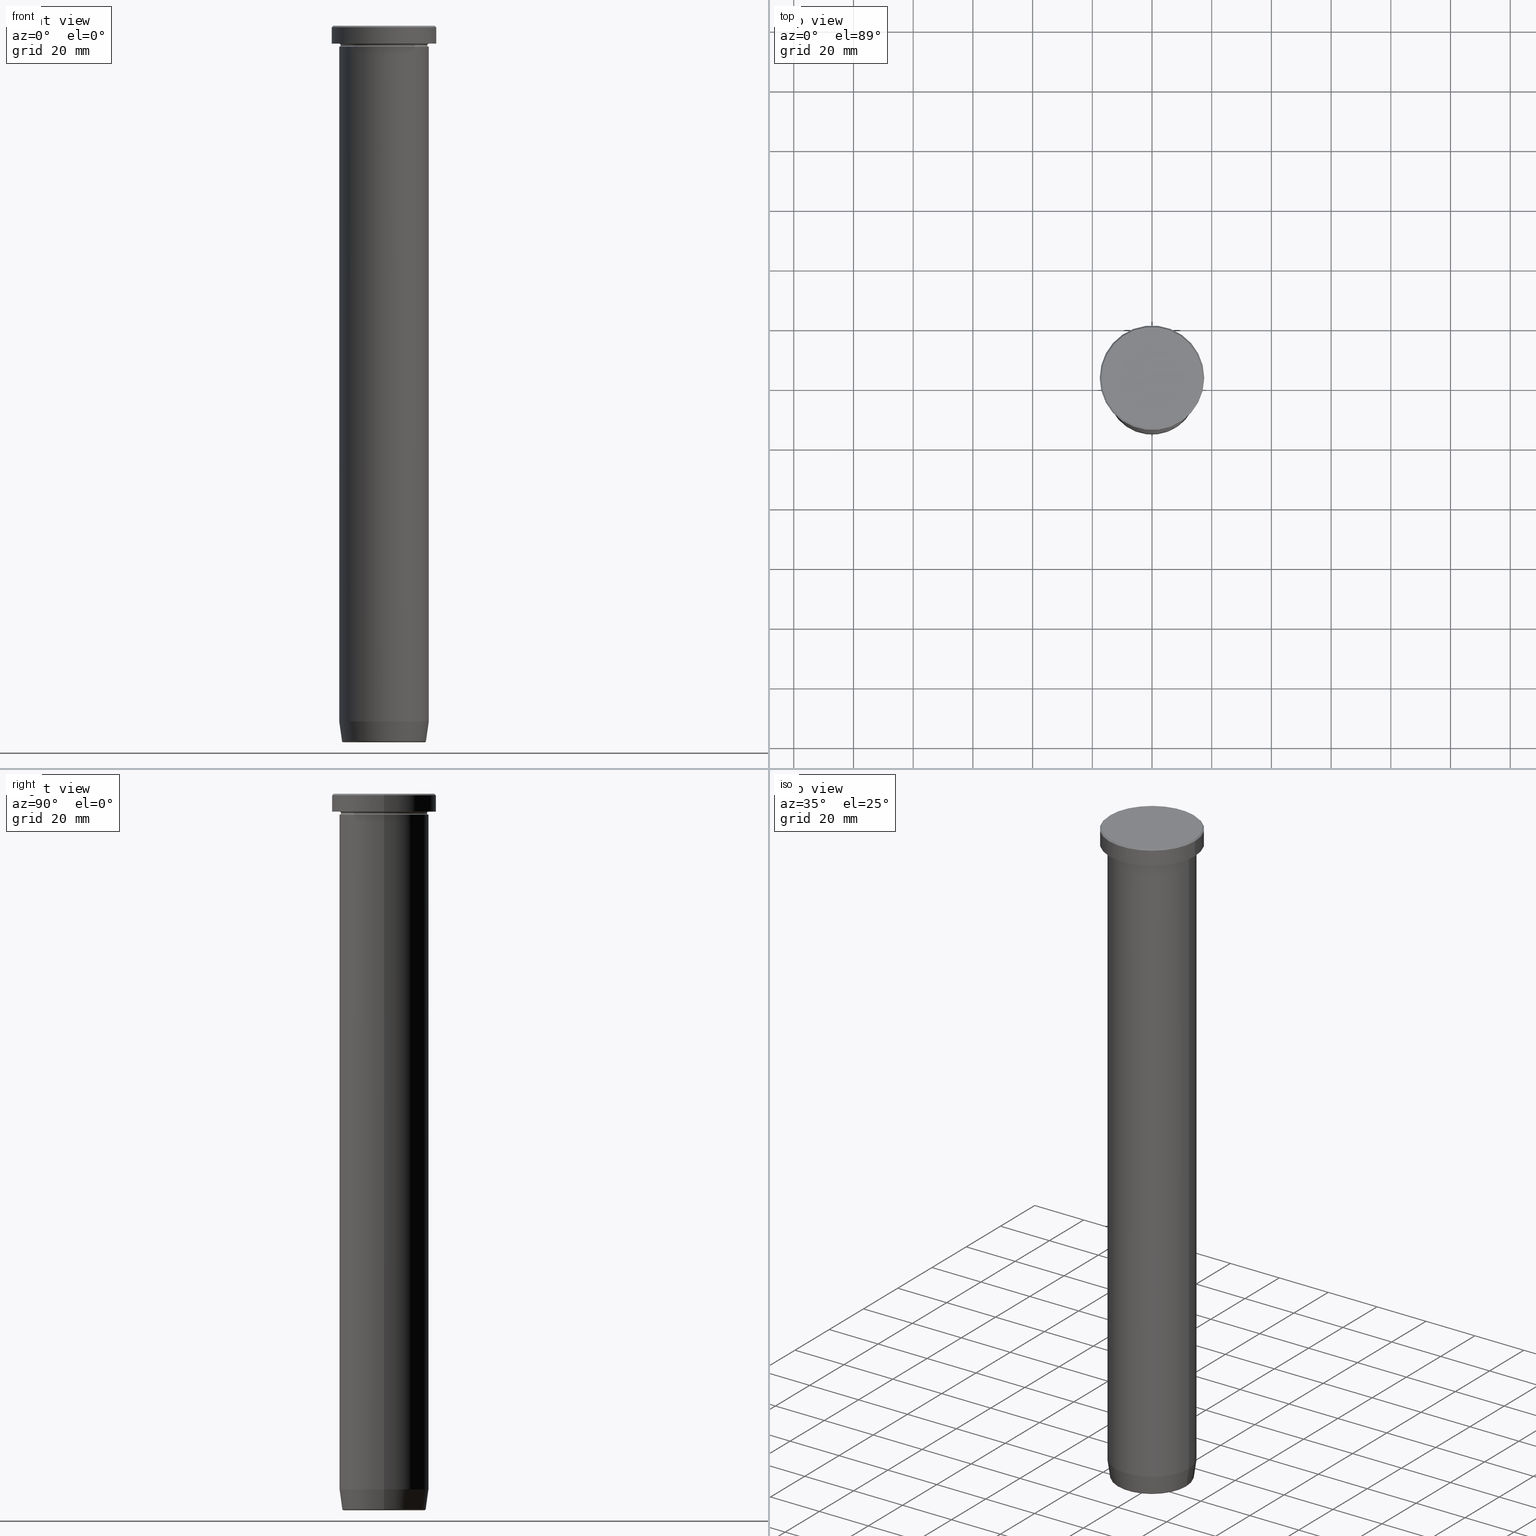
[diagram: canonical four-view strip — front | top / right | iso, engineering-drawing reading convention]
A machine part, canonical four-view strip (front | top / right | iso — engineering-drawing reading convention). The complete STEP part file that produces these views, byte-faithful:
ISO-10303-21;
HEADER;
FILE_DESCRIPTION (( 'STEP AP203' ),
    '1' );
FILE_NAME ('1369.STEP',
    '2024-01-02T17:49:55',
    ( '' ),
    ( '' ),
    'SwSTEP 2.0',
    'SolidWorks 2019',
    '' );
FILE_SCHEMA (( 'CONFIG_CONTROL_DESIGN' ));
ENDSEC;

DATA;
#1 = DIRECTION ( 'NONE',  ( -1.000000000000000000, 0.000000000000000000, -0.000000000000000000 ) ) ;
#2 = EDGE_CURVE ( 'NONE', #445, #583, #279, .T. ) ;
#3 = CARTESIAN_POINT ( 'NONE',  ( 15.00000000000000000, 0.000000000000000000, 0.000000000000000000 ) ) ;
#4 = CIRCLE ( 'NONE', #320, 15.00000000000000000 ) ;
#5 = DIRECTION ( 'NONE',  ( 1.000000000000000000, 0.000000000000000000, 0.000000000000000000 ) ) ;
#6 = ORIENTED_EDGE ( 'NONE', *, *, #364, .T. ) ;
#7 = DIRECTION ( 'NONE',  ( 1.000000000000000000, 0.000000000000000000, 0.000000000000000000 ) ) ;
#8 = CARTESIAN_POINT ( 'NONE',  ( -17.00000000000000000, 0.000000000000000000, 0.000000000000000000 ) ) ;
#9 = DIRECTION ( 'NONE',  ( 1.000000000000000000, 0.000000000000000000, 0.000000000000000000 ) ) ;
#10 = DIRECTION ( 'NONE',  ( -0.000000000000000000, -0.000000000000000000, 1.000000000000000000 ) ) ;
#11 = AXIS2_PLACEMENT_3D ( 'NONE', #429, #288, #438 ) ;
#12 = EDGE_CURVE ( 'NONE', #251, #122, #62, .T. ) ;
#13 = DIRECTION ( 'NONE',  ( 1.000000000000000000, 0.000000000000000000, 0.000000000000000000 ) ) ;
#14 = CARTESIAN_POINT ( 'NONE',  ( 0.000000000000000000, 0.000000000000000000, -232.9999999999999716 ) ) ;
#15 = VECTOR ( 'NONE', #355, 1000.000000000000000 ) ;
#16 = UNCERTAINTY_MEASURE_WITH_UNIT (LENGTH_MEASURE( 1.000000000000000082E-05 ), #390, 'distance_accuracy_value', 'NONE');
#17 = AXIS2_PLACEMENT_3D ( 'NONE', #595, #548, #46 ) ;
#18 = DIRECTION ( 'NONE',  ( 0.000000000000000000, 0.000000000000000000, 1.000000000000000000 ) ) ;
#19 = DIRECTION ( 'NONE',  ( -0.000000000000000000, -0.000000000000000000, 1.000000000000000000 ) ) ;
#20 = CARTESIAN_POINT ( 'NONE',  ( 0.000000000000000000, 0.000000000000000000, 0.000000000000000000 ) ) ;
#21 = ORIENTED_EDGE ( 'NONE', *, *, #437, .T. ) ;
#22 = CARTESIAN_POINT ( 'NONE',  ( 0.000000000000000000, 0.000000000000000000, -240.0000000000000000 ) ) ;
#23 = APPLICATION_CONTEXT ( 'configuration controlled 3d designs of mechanical parts and assemblies' ) ;
#24 = EDGE_CURVE ( 'NONE', #122, #445, #64, .T. ) ;
#25 =( NAMED_UNIT ( * ) SI_UNIT ( $, .STERADIAN. ) SOLID_ANGLE_UNIT ( ) );
#26 = CARTESIAN_POINT ( 'NONE',  ( -17.50000000000000000, 2.143131898507868248E-15, -5.999999999999999112 ) ) ;
#27 = CIRCLE ( 'NONE', #174, 17.50000000000000000 ) ;
#28 = EDGE_LOOP ( 'NONE', ( #553, #565 ) ) ;
#29 = DIRECTION ( 'NONE',  ( -0.000000000000000000, -0.000000000000000000, 1.000000000000000000 ) ) ;
#30 = PRODUCT ( '1369', '1369', '', ( #345 ) ) ;
#31 = ORIENTED_EDGE ( 'NONE', *, *, #494, .T. ) ;
#32 = DIRECTION ( 'NONE',  ( 1.000000000000000000, 0.000000000000000000, 0.000000000000000000 ) ) ;
#33 = EDGE_CURVE ( 'NONE', #80, #36, #140, .T. ) ;
#34 = ORIENTED_EDGE ( 'NONE', *, *, #580, .F. ) ;
#35 = FACE_OUTER_BOUND ( 'NONE', #347, .T. ) ;
#36 = VERTEX_POINT ( 'NONE', #343 ) ;
#37 = AXIS2_PLACEMENT_3D ( 'NONE', #86, #465, #40 ) ;
#38 = CIRCLE ( 'NONE', #396, 15.00000000000000000 ) ;
#39 = ORIENTED_EDGE ( 'NONE', *, *, #177, .T. ) ;
#40 = DIRECTION ( 'NONE',  ( -1.000000000000000000, 0.000000000000000000, 0.000000000000000000 ) ) ;
#41 = VERTEX_POINT ( 'NONE', #567 ) ;
#42 = DIRECTION ( 'NONE',  ( 1.000000000000000000, 0.000000000000000000, 0.000000000000000000 ) ) ;
#43 = EDGE_CURVE ( 'NONE', #187, #217, #218, .T. ) ;
#44 = ORIENTED_EDGE ( 'NONE', *, *, #110, .F. ) ;
#45 = CARTESIAN_POINT ( 'NONE',  ( 0.000000000000000000, 0.000000000000000000, -5.999999999999999112 ) ) ;
#46 = DIRECTION ( 'NONE',  ( 0.000000000000000000, 0.000000000000000000, -1.000000000000000000 ) ) ;
#47 = CIRCLE ( 'NONE', #550, 15.00000000000000000 ) ;
#48 = EDGE_CURVE ( 'NONE', #41, #58, #295, .T. ) ;
#49 = CARTESIAN_POINT ( 'NONE',  ( 0.000000000000000000, 0.000000000000000000, -240.0000000000000000 ) ) ;
#50 = CARTESIAN_POINT ( 'NONE',  ( 0.000000000000000000, 0.000000000000000000, -6.499999999999999112 ) ) ;
#51 = CC_DESIGN_DATE_AND_TIME_ASSIGNMENT ( #534, #309, ( #348 ) ) ;
#52 = DIRECTION ( 'NONE',  ( 0.000000000000000000, 0.000000000000000000, -1.000000000000000000 ) ) ;
#53 = ORIENTED_EDGE ( 'NONE', *, *, #237, .T. ) ;
#54 = VECTOR ( 'NONE', #220, 1000.000000000000000 ) ;
#55 = DIRECTION ( 'NONE',  ( -0.000000000000000000, -0.000000000000000000, 1.000000000000000000 ) ) ;
#56 = DIRECTION ( 'NONE',  ( 1.000000000000000000, 0.000000000000000000, 0.000000000000000000 ) ) ;
#57 = DIRECTION ( 'NONE',  ( -0.000000000000000000, -0.000000000000000000, 1.000000000000000000 ) ) ;
#58 = VERTEX_POINT ( 'NONE', #332 ) ;
#59 = CC_DESIGN_PERSON_AND_ORGANIZATION_ASSIGNMENT ( #528, #215, ( #105 ) ) ;
#60 = DIRECTION ( 'NONE',  ( -0.000000000000000000, -0.000000000000000000, 1.000000000000000000 ) ) ;
#61 = ORIENTED_EDGE ( 'NONE', *, *, #596, .T. ) ;
#62 = CIRCLE ( 'NONE', #576, 17.50000000000000000 ) ;
#63 = DIRECTION ( 'NONE',  ( 0.000000000000000000, 0.000000000000000000, -1.000000000000000000 ) ) ;
#64 = LINE ( 'NONE', #389, #393 ) ;
#65 = CONICAL_SURFACE ( 'NONE', #406, 14.01621415708325280, 0.1396263401595470577 ) ;
#66 = LOCAL_TIME ( 18, 49, 55.00000000000000000, #307 ) ;
#67 = ADVANCED_FACE ( 'NONE', ( #385 ), #227, .F. ) ;
#68 = ORIENTED_EDGE ( 'NONE', *, *, #450, .T. ) ;
#69 = DIRECTION ( 'NONE',  ( 1.000000000000000000, 0.000000000000000000, 0.000000000000000000 ) ) ;
#70 = ORIENTED_EDGE ( 'NONE', *, *, #245, .F. ) ;
#71 = CARTESIAN_POINT ( 'NONE',  ( -15.00000000000000000, 0.000000000000000000, -6.499999999999999112 ) ) ;
#72 = PRODUCT_RELATED_PRODUCT_CATEGORY ( 'detail', '', ( #30 ) ) ;
#73 = CARTESIAN_POINT ( 'NONE',  ( 0.000000000000000000, 0.000000000000000000, 0.000000000000000000 ) ) ;
#74 = VERTEX_POINT ( 'NONE', #298 ) ;
#75 = CIRCLE ( 'NONE', #208, 13.58157078817513863 ) ;
#76 = APPROVAL_STATUS ( 'not_yet_approved' ) ;
#77 = DIRECTION ( 'NONE',  ( 0.000000000000000000, 0.000000000000000000, -1.000000000000000000 ) ) ;
#78 = ADVANCED_FACE ( 'NONE', ( #564 ), #293, .F. ) ;
#79 = CARTESIAN_POINT ( 'NONE',  ( 0.000000000000000000, 0.000000000000000000, -239.5000000000000000 ) ) ;
#80 = VERTEX_POINT ( 'NONE', #8 ) ;
#81 = DIRECTION ( 'NONE',  ( -0.000000000000000000, -0.000000000000000000, 1.000000000000000000 ) ) ;
#82 = AXIS2_PLACEMENT_3D ( 'NONE', #207, #77, #119 ) ;
#83 = LOCAL_TIME ( 18, 49, 55.00000000000000000, #485 ) ;
#84 = CARTESIAN_POINT ( 'NONE',  ( 0.000000000000000000, 0.000000000000000000, -239.5000000000000000 ) ) ;
#85 = EDGE_CURVE ( 'NONE', #122, #251, #506, .T. ) ;
#86 = CARTESIAN_POINT ( 'NONE',  ( 0.000000000000000000, 0.000000000000000000, -6.499999999999999112 ) ) ;
#87 = EDGE_LOOP ( 'NONE', ( #131, #270 ) ) ;
#88 = FACE_OUTER_BOUND ( 'NONE', #297, .T. ) ;
#89 = VECTOR ( 'NONE', #444, 1000.000000000000000 ) ;
#90 = ORIENTED_EDGE ( 'NONE', *, *, #94, .T. ) ;
#91 = DIRECTION ( 'NONE',  ( -0.000000000000000000, -0.000000000000000000, 1.000000000000000000 ) ) ;
#92 = CIRCLE ( 'NONE', #128, 13.58157078817513863 ) ;
#93 = ORIENTED_EDGE ( 'NONE', *, *, #552, .T. ) ;
#94 = EDGE_CURVE ( 'NONE', #168, #523, #341, .T. ) ;
#95 = DIRECTION ( 'NONE',  ( -0.000000000000000000, -0.000000000000000000, 1.000000000000000000 ) ) ;
#96 = DIRECTION ( 'NONE',  ( 1.000000000000000000, 0.000000000000000000, 0.000000000000000000 ) ) ;
#97 = AXIS2_PLACEMENT_3D ( 'NONE', #421, #249, #236 ) ;
#98 = DIRECTION ( 'NONE',  ( 1.000000000000000000, 0.000000000000000000, 0.000000000000000000 ) ) ;
#99 = CARTESIAN_POINT ( 'NONE',  ( 0.000000000000000000, 0.000000000000000000, -6.499999999999999112 ) ) ;
#100 = EDGE_LOOP ( 'NONE', ( #562, #532 ) ) ;
#101 = CYLINDRICAL_SURFACE ( 'NONE', #281, 17.50000000000000000 ) ;
#102 = AXIS2_PLACEMENT_3D ( 'NONE', #73, #29, #305 ) ;
#103 = MANIFOLD_SOLID_BREP ( 'Zaoblit4', #124 ) ;
#104 = DIRECTION ( 'NONE',  ( 1.000000000000000000, 0.000000000000000000, 0.000000000000000000 ) ) ;
#105 = PRODUCT_DEFINITION ( 'NEZN�M�', '', #481, #524 ) ;
#106 = DIRECTION ( 'NONE',  ( 1.000000000000000000, 0.000000000000000000, 0.000000000000000000 ) ) ;
#107 = DIRECTION ( 'NONE',  ( -0.000000000000000000, -0.000000000000000000, 1.000000000000000000 ) ) ;
#108 = CYLINDRICAL_SURFACE ( 'NONE', #518, 15.00000000000000000 ) ;
#109 = DIRECTION ( 'NONE',  ( -0.000000000000000000, -0.000000000000000000, 1.000000000000000000 ) ) ;
#110 = EDGE_CURVE ( 'NONE', #523, #168, #358, .T. ) ;
#111 = APPROVAL_STATUS ( 'not_yet_approved' ) ;
#112 = DIRECTION ( 'NONE',  ( -0.000000000000000000, -0.000000000000000000, 1.000000000000000000 ) ) ;
#113 = AXIS2_PLACEMENT_3D ( 'NONE', #14, #10, #155 ) ;
#114 = ORIENTED_EDGE ( 'NONE', *, *, #110, .T. ) ;
#115 = ORIENTED_EDGE ( 'NONE', *, *, #221, .F. ) ;
#116 = CC_DESIGN_APPROVAL ( #330, ( #348 ) ) ;
#117 = PERSON_AND_ORGANIZATION_ROLE ( 'design_owner' ) ;
#118 = ORIENTED_EDGE ( 'NONE', *, *, #450, .F. ) ;
#119 = DIRECTION ( 'NONE',  ( -1.000000000000000000, 0.000000000000000000, 0.000000000000000000 ) ) ;
#120 = APPROVAL_STATUS ( 'not_yet_approved' ) ;
#121 = VERTEX_POINT ( 'NONE', #202 ) ;
#122 = VERTEX_POINT ( 'NONE', #379 ) ;
#123 = CARTESIAN_POINT ( 'NONE',  ( -15.00000000000000000, 1.836970198721029589E-15, 0.000000000000000000 ) ) ;
#124 = CLOSED_SHELL ( 'NONE', ( #419, #283, #487, #323, #186, #337, #78, #135 ) ) ;
#125 = DIRECTION ( 'NONE',  ( -0.000000000000000000, -0.000000000000000000, 1.000000000000000000 ) ) ;
#126 = EDGE_CURVE ( 'NONE', #573, #541, #75, .T. ) ;
#127 = AXIS2_PLACEMENT_3D ( 'NONE', #134, #453, #361 ) ;
#128 = AXIS2_PLACEMENT_3D ( 'NONE', #188, #63, #243 ) ;
#129 = CALENDAR_DATE ( 2024, 2, 1 ) ;
#130 = DIRECTION ( 'NONE',  ( 0.000000000000000000, 0.000000000000000000, -1.000000000000000000 ) ) ;
#131 = ORIENTED_EDGE ( 'NONE', *, *, #427, .F. ) ;
#132 = ORIENTED_EDGE ( 'NONE', *, *, #48, .F. ) ;
#133 = EDGE_LOOP ( 'NONE', ( #527, #68 ) ) ;
#134 = CARTESIAN_POINT ( 'NONE',  ( 0.000000000000000000, 0.000000000000000000, 0.000000000000000000 ) ) ;
#135 = ADVANCED_FACE ( 'NONE', ( #163 ), #414, .T. ) ;
#136 = CARTESIAN_POINT ( 'NONE',  ( 0.000000000000000000, 0.000000000000000000, -36.00000000000000000 ) ) ;
#137 =( GEOMETRIC_REPRESENTATION_CONTEXT ( 3 ) GLOBAL_UNCERTAINTY_ASSIGNED_CONTEXT ( ( #16 ) ) GLOBAL_UNIT_ASSIGNED_CONTEXT ( ( #390, #443, #25 ) ) REPRESENTATION_CONTEXT ( 'NONE', 'WORKASPACE' ) );
#138 = ORIENTED_EDGE ( 'NONE', *, *, #177, .F. ) ;
#139 = CARTESIAN_POINT ( 'NONE',  ( 0.000000000000000000, 0.000000000000000000, 0.000000000000000000 ) ) ;
#140 = CIRCLE ( 'NONE', #478, 17.00000000000000000 ) ;
#141 = VERTEX_POINT ( 'NONE', #529 ) ;
#142 = PLANE ( 'NONE',  #597 ) ;
#143 = CC_DESIGN_DATE_AND_TIME_ASSIGNMENT ( #394, #159, ( #105 ) ) ;
#144 = ORIENTED_EDGE ( 'NONE', *, *, #512, .F. ) ;
#145 = DIRECTION ( 'NONE',  ( 0.000000000000000000, 0.000000000000000000, -1.000000000000000000 ) ) ;
#146 = TOROIDAL_SURFACE ( 'NONE', #191, 15.00000000000000000, 0.5000000000000000000 ) ;
#147 = DIRECTION ( 'NONE',  ( -0.000000000000000000, -0.000000000000000000, 1.000000000000000000 ) ) ;
#148 = VERTEX_POINT ( 'NONE', #268 ) ;
#149 = EDGE_CURVE ( 'NONE', #180, #520, #540, .T. ) ;
#150 = DIRECTION ( 'NONE',  ( -0.000000000000000000, -0.000000000000000000, 1.000000000000000000 ) ) ;
#151 = AXIS2_PLACEMENT_3D ( 'NONE', #336, #109, #285 ) ;
#152 = DIRECTION ( 'NONE',  ( -0.000000000000000000, -0.000000000000000000, 1.000000000000000000 ) ) ;
#153 = DIRECTION ( 'NONE',  ( -0.000000000000000000, -0.000000000000000000, 1.000000000000000000 ) ) ;
#154 = CIRCLE ( 'NONE', #164, 14.07670482254592059 ) ;
#155 = DIRECTION ( 'NONE',  ( 1.000000000000000000, 0.000000000000000000, 0.000000000000000000 ) ) ;
#156 = CARTESIAN_POINT ( 'NONE',  ( 13.58157078817513863, 0.000000000000000000, -239.5000000000000000 ) ) ;
#157 = ORIENTED_EDGE ( 'NONE', *, *, #221, .T. ) ;
#158 = ADVANCED_FACE ( 'NONE', ( #35 ), #472, .T. ) ;
#159 = DATE_TIME_ROLE ( 'creation_date' ) ;
#160 = ORIENTED_EDGE ( 'NONE', *, *, #304, .T. ) ;
#161 = ORIENTED_EDGE ( 'NONE', *, *, #552, .F. ) ;
#162 = DATE_AND_TIME ( #129, #83 ) ;
#163 = FACE_OUTER_BOUND ( 'NONE', #210, .T. ) ;
#164 = AXIS2_PLACEMENT_3D ( 'NONE', #363, #91, #181 ) ;
#165 = PERSON_AND_ORGANIZATION ( #253, #591 ) ;
#166 = ORIENTED_EDGE ( 'NONE', *, *, #43, .T. ) ;
#167 = DIRECTION ( 'NONE',  ( 1.000000000000000000, 0.000000000000000000, 0.000000000000000000 ) ) ;
#168 = VERTEX_POINT ( 'NONE', #397 ) ;
#169 = COORDINATED_UNIVERSAL_TIME_OFFSET ( 1, 0, .AHEAD. ) ;
#170 = APPROVAL ( #111, 'NEUR�EN�' ) ;
#171 = CARTESIAN_POINT ( 'NONE',  ( -15.00000000000000000, 1.836970198721029589E-15, 0.000000000000000000 ) ) ;
#172 = CALENDAR_DATE ( 2024, 2, 1 ) ;
#173 = DIRECTION ( 'NONE',  ( -1.000000000000000000, 0.000000000000000000, 0.000000000000000000 ) ) ;
#174 = AXIS2_PLACEMENT_3D ( 'NONE', #216, #130, #404 ) ;
#175 = AXIS2_PLACEMENT_3D ( 'NONE', #566, #519, #106 ) ;
#176 = CARTESIAN_POINT ( 'NONE',  ( 0.000000000000000000, 0.000000000000000000, -36.00000000000000000 ) ) ;
#177 = EDGE_CURVE ( 'NONE', #541, #74, #346, .T. ) ;
#178 = DIRECTION ( 'NONE',  ( -1.000000000000000000, 0.000000000000000000, -0.000000000000000000 ) ) ;
#179 = CC_DESIGN_PERSON_AND_ORGANIZATION_ASSIGNMENT ( #259, #446, ( #481 ) ) ;
#180 = VERTEX_POINT ( 'NONE', #486 ) ;
#181 = DIRECTION ( 'NONE',  ( -1.000000000000000000, 0.000000000000000000, 0.000000000000000000 ) ) ;
#182 = VECTOR ( 'NONE', #261, 1000.000000000000000 ) ;
#183 = AXIS2_PLACEMENT_3D ( 'NONE', #84, #277, #545 ) ;
#184 = FACE_OUTER_BOUND ( 'NONE', #368, .T. ) ;
#185 = DIRECTION ( 'NONE',  ( 1.224646799147353207E-16, 1.000000000000000000, 0.000000000000000000 ) ) ;
#186 = ADVANCED_FACE ( 'NONE', ( #313 ), #395, .T. ) ;
#187 = VERTEX_POINT ( 'NONE', #301 ) ;
#188 = CARTESIAN_POINT ( 'NONE',  ( 0.000000000000000000, 0.000000000000000000, -240.0000000000000000 ) ) ;
#189 = CIRCLE ( 'NONE', #579, 17.00000000000000000 ) ;
#190 = CARTESIAN_POINT ( 'NONE',  ( 0.000000000000000000, 0.000000000000000000, 0.000000000000000000 ) ) ;
#191 = AXIS2_PLACEMENT_3D ( 'NONE', #557, #145, #384 ) ;
#192 = CARTESIAN_POINT ( 'NONE',  ( 0.000000000000000000, 0.000000000000000000, -232.9999999999999716 ) ) ;
#193 = EDGE_CURVE ( 'NONE', #217, #329, #289, .T. ) ;
#194 = DIRECTION ( 'NONE',  ( -0.000000000000000000, -0.000000000000000000, 1.000000000000000000 ) ) ;
#195 = ORIENTED_EDGE ( 'NONE', *, *, #230, .T. ) ;
#196 = ORIENTED_EDGE ( 'NONE', *, *, #2, .F. ) ;
#197 = DIRECTION ( 'NONE',  ( -0.1391731009600661317, 1.704378926181564302E-17, 0.9902680687415702510 ) ) ;
#198 = ORIENTED_EDGE ( 'NONE', *, *, #94, .F. ) ;
#199 = CYLINDRICAL_SURFACE ( 'NONE', #201, 15.00000000000000000 ) ;
#200 = VECTOR ( 'NONE', #451, 1000.000000000000000 ) ;
#201 = AXIS2_PLACEMENT_3D ( 'NONE', #190, #147, #13 ) ;
#202 = CARTESIAN_POINT ( 'NONE',  ( 14.07670482254592059, 0.000000000000000000, -239.5695865504800395 ) ) ;
#203 = APPROVAL_ROLE ( '' ) ;
#204 = CARTESIAN_POINT ( 'NONE',  ( 0.000000000000000000, 0.000000000000000000, -240.0000000000000000 ) ) ;
#205 = EDGE_CURVE ( 'NONE', #251, #583, #584, .T. ) ;
#206 = DIRECTION ( 'NONE',  ( 1.000000000000000000, 0.000000000000000000, 0.000000000000000000 ) ) ;
#207 = CARTESIAN_POINT ( 'NONE',  ( 0.000000000000000000, 0.000000000000000000, 0.000000000000000000 ) ) ;
#208 = AXIS2_PLACEMENT_3D ( 'NONE', #204, #52, #5 ) ;
#209 = CIRCLE ( 'NONE', #175, 14.49999999999999822 ) ;
#210 = EDGE_LOOP ( 'NONE', ( #138, #575, #61, #439 ) ) ;
#211 = VECTOR ( 'NONE', #197, 1000.000000000000000 ) ;
#212 = CC_DESIGN_PERSON_AND_ORGANIZATION_ASSIGNMENT ( #492, #117, ( #30 ) ) ;
#213 = SECURITY_CLASSIFICATION_LEVEL ( 'unclassified' ) ;
#214 = DIRECTION ( 'NONE',  ( -1.000000000000000000, 1.224646799147353454E-16, 0.000000000000000000 ) ) ;
#215 = PERSON_AND_ORGANIZATION_ROLE ( 'creator' ) ;
#216 = CARTESIAN_POINT ( 'NONE',  ( 0.000000000000000000, 0.000000000000000000, -0.5000000000000073275 ) ) ;
#217 = VERTEX_POINT ( 'NONE', #405 ) ;
#218 = CIRCLE ( 'NONE', #556, 14.49999999999999822 ) ;
#219 = ORIENTED_EDGE ( 'NONE', *, *, #258, .T. ) ;
#220 = DIRECTION ( 'NONE',  ( 0.7071067811865426878, 8.659560562354874926E-17, -0.7071067811865524577 ) ) ;
#221 = EDGE_CURVE ( 'NONE', #121, #74, #454, .T. ) ;
#222 = ORIENTED_EDGE ( 'NONE', *, *, #48, .T. ) ;
#223 = APPROVAL_PERSON_ORGANIZATION ( #402, #269, #482 ) ;
#224 = CARTESIAN_POINT ( 'NONE',  ( 0.000000000000000000, 0.000000000000000000, 0.000000000000000000 ) ) ;
#225 = ORIENTED_EDGE ( 'NONE', *, *, #580, .T. ) ;
#226 = DIRECTION ( 'NONE',  ( 1.000000000000000000, 0.000000000000000000, 0.000000000000000000 ) ) ;
#227 = TOROIDAL_SURFACE ( 'NONE', #286, 15.00000000000000000, 0.5000000000000000000 ) ;
#228 = DIRECTION ( 'NONE',  ( -0.000000000000000000, -0.000000000000000000, 1.000000000000000000 ) ) ;
#229 = AXIS2_PLACEMENT_3D ( 'NONE', #265, #490, #69 ) ;
#230 = EDGE_CURVE ( 'NONE', #180, #306, #4, .T. ) ;
#231 = FACE_OUTER_BOUND ( 'NONE', #495, .T. ) ;
#232 = ORIENTED_EDGE ( 'NONE', *, *, #507, .F. ) ;
#233 = DIRECTION ( 'NONE',  ( -1.000000000000000000, 1.224646799147349509E-16, 0.000000000000000000 ) ) ;
#234 = ADVANCED_BREP_SHAPE_REPRESENTATION ( '1369', ( #302, #103, #263 ), #137 ) ;
#235 = CARTESIAN_POINT ( 'NONE',  ( 0.000000000000000000, 0.000000000000000000, 0.000000000000000000 ) ) ;
#236 = DIRECTION ( 'NONE',  ( 1.000000000000000000, 0.000000000000000000, 0.000000000000000000 ) ) ;
#237 = EDGE_CURVE ( 'NONE', #80, #583, #256, .T. ) ;
#238 = LINE ( 'NONE', #3, #435 ) ;
#239 = LOCAL_TIME ( 18, 49, 55.00000000000000000, #264 ) ;
#240 = CARTESIAN_POINT ( 'NONE',  ( 0.000000000000000000, 0.000000000000000000, -5.999999999999999112 ) ) ;
#241 = DIRECTION ( 'NONE',  ( -1.000000000000000000, 0.000000000000000000, 0.000000000000000000 ) ) ;
#242 = ORIENTED_EDGE ( 'NONE', *, *, #266, .T. ) ;
#243 = DIRECTION ( 'NONE',  ( 1.000000000000000000, 0.000000000000000000, 0.000000000000000000 ) ) ;
#244 = ORIENTED_EDGE ( 'NONE', *, *, #24, .T. ) ;
#245 = EDGE_CURVE ( 'NONE', #58, #41, #517, .T. ) ;
#246 = CARTESIAN_POINT ( 'NONE',  ( 0.000000000000000000, 0.000000000000000000, -6.999999999999999112 ) ) ;
#247 = AXIS2_PLACEMENT_3D ( 'NONE', #79, #533, #32 ) ;
#248 = AXIS2_PLACEMENT_3D ( 'NONE', #378, #153, #388 ) ;
#249 = DIRECTION ( 'NONE',  ( 0.000000000000000000, 0.000000000000000000, -1.000000000000000000 ) ) ;
#250 = APPLICATION_PROTOCOL_DEFINITION ( 'international standard', 'config_control_design', 1994, #23 ) ;
#251 = VERTEX_POINT ( 'NONE', #26 ) ;
#252 = DIRECTION ( 'NONE',  ( -1.000000000000000000, -1.224646799147349509E-16, 0.000000000000000000 ) ) ;
#253 = PERSON ( 'NEUR�EN�', 'NEUR�EN�', 'NEUR�EN�', ('NEUR�EN�'), ('NEUR�EN�'), ('NEUR�EN�') ) ;
#254 = DIRECTION ( 'NONE',  ( 1.000000000000000000, 0.000000000000000000, 0.000000000000000000 ) ) ;
#255 = ORIENTED_EDGE ( 'NONE', *, *, #315, .T. ) ;
#256 = LINE ( 'NONE', #441, #89 ) ;
#257 = ORIENTED_EDGE ( 'NONE', *, *, #437, .F. ) ;
#258 = EDGE_CURVE ( 'NONE', #36, #445, #310, .T. ) ;
#259 = PERSON_AND_ORGANIZATION ( #253, #591 ) ;
#260 = ORIENTED_EDGE ( 'NONE', *, *, #410, .F. ) ;
#261 = DIRECTION ( 'NONE',  ( -0.000000000000000000, -0.000000000000000000, 1.000000000000000000 ) ) ;
#262 = AXIS2_PLACEMENT_3D ( 'NONE', #22, #112, #206 ) ;
#263 = AXIS2_PLACEMENT_3D ( 'NONE', #20, #18, #254 ) ;
#264 = COORDINATED_UNIVERSAL_TIME_OFFSET ( 1, 0, .AHEAD. ) ;
#265 = CARTESIAN_POINT ( 'NONE',  ( 0.000000000000000000, 0.000000000000000000, -36.00000000000000000 ) ) ;
#266 = EDGE_CURVE ( 'NONE', #187, #148, #366, .T. ) ;
#267 = DATE_AND_TIME ( #356, #239 ) ;
#268 = CARTESIAN_POINT ( 'NONE',  ( 15.00000000000000000, 1.836970198721029589E-15, -5.999999999999998224 ) ) ;
#269 = APPROVAL ( #120, 'NEUR�EN�' ) ;
#270 = ORIENTED_EDGE ( 'NONE', *, *, #230, .F. ) ;
#271 = CARTESIAN_POINT ( 'NONE',  ( -15.00000000000000000, 1.836970198721029589E-15, -6.499999999999999112 ) ) ;
#272 = CONICAL_SURFACE ( 'NONE', #558, 17.00000000000000000, 0.7853981633974415066 ) ;
#273 = LOCAL_TIME ( 18, 49, 55.00000000000000000, #169 ) ;
#274 = FACE_OUTER_BOUND ( 'NONE', #398, .T. ) ;
#275 = APPLICATION_CONTEXT ( 'configuration controlled 3d designs of mechanical parts and assemblies' ) ;
#276 = ORIENTED_EDGE ( 'NONE', *, *, #149, .T. ) ;
#277 = DIRECTION ( 'NONE',  ( -0.000000000000000000, -0.000000000000000000, 1.000000000000000000 ) ) ;
#278 = EDGE_CURVE ( 'NONE', #141, #520, #463, .T. ) ;
#279 = CIRCLE ( 'NONE', #97, 17.50000000000000000 ) ;
#280 = CARTESIAN_POINT ( 'NONE',  ( 0.000000000000000000, 17.50000000000000000, -5.999999999999999112 ) ) ;
#281 = AXIS2_PLACEMENT_3D ( 'NONE', #474, #60, #56 ) ;
#282 = DIRECTION ( 'NONE',  ( -1.000000000000000000, 0.000000000000000000, -0.000000000000000000 ) ) ;
#283 = ADVANCED_FACE ( 'NONE', ( #586 ), #536, .T. ) ;
#284 = FACE_OUTER_BOUND ( 'NONE', #470, .T. ) ;
#285 = DIRECTION ( 'NONE',  ( 1.000000000000000000, 0.000000000000000000, 0.000000000000000000 ) ) ;
#286 = AXIS2_PLACEMENT_3D ( 'NONE', #468, #426, #391 ) ;
#287 = DIRECTION ( 'NONE',  ( -0.000000000000000000, -0.000000000000000000, 1.000000000000000000 ) ) ;
#288 = DIRECTION ( 'NONE',  ( 0.000000000000000000, -0.000000000000000000, 1.000000000000000000 ) ) ;
#289 = CIRCLE ( 'NONE', #423, 0.5000000000000004441 ) ;
#290 = DIRECTION ( 'NONE',  ( 1.000000000000000000, 0.000000000000000000, 0.000000000000000000 ) ) ;
#291 = EDGE_LOOP ( 'NONE', ( #157, #466, #198, #408 ) ) ;
#292 = DIRECTION ( 'NONE',  ( -0.000000000000000000, -0.000000000000000000, 1.000000000000000000 ) ) ;
#293 = PLANE ( 'NONE',  #11 ) ;
#294 = EDGE_CURVE ( 'NONE', #523, #41, #578, .T. ) ;
#295 = CIRCLE ( 'NONE', #151, 15.00000000000000000 ) ;
#296 = AXIS2_PLACEMENT_3D ( 'NONE', #381, #19, #516 ) ;
#297 = EDGE_LOOP ( 'NONE', ( #547, #195, #401, #371 ) ) ;
#298 = CARTESIAN_POINT ( 'NONE',  ( -14.07670482254592059, 1.780434674534163799E-15, -239.5695865504800395 ) ) ;
#299 = COORDINATED_UNIVERSAL_TIME_OFFSET ( 1, 0, .AHEAD. ) ;
#300 = APPROVAL_PERSON_ORGANIZATION ( #165, #170, #203 ) ;
#301 = CARTESIAN_POINT ( 'NONE',  ( 14.49999999999999822, 0.000000000000000000, -6.499999999999999112 ) ) ;
#302 = MANIFOLD_SOLID_BREP ( 'Zkosen�1', #460 ) ;
#303 = PERSON_AND_ORGANIZATION_ROLE ( 'classification_officer' ) ;
#304 = EDGE_CURVE ( 'NONE', #583, #445, #27, .T. ) ;
#305 = DIRECTION ( 'NONE',  ( 1.000000000000000000, 0.000000000000000000, 0.000000000000000000 ) ) ;
#306 = VERTEX_POINT ( 'NONE', #325 ) ;
#307 = COORDINATED_UNIVERSAL_TIME_OFFSET ( 1, 0, .AHEAD. ) ;
#308 = CARTESIAN_POINT ( 'NONE',  ( -13.58157078817513863, 1.663262719313187755E-15, -239.5000000000000000 ) ) ;
#309 = DATE_TIME_ROLE ( 'classification_date' ) ;
#310 = LINE ( 'NONE', #449, #54 ) ;
#311 = TOROIDAL_SURFACE ( 'NONE', #37, 15.00000000000000000, 0.5000000000000000000 ) ;
#312 = APPROVAL_ROLE ( '' ) ;
#313 = FACE_OUTER_BOUND ( 'NONE', #342, .T. ) ;
#314 = ORIENTED_EDGE ( 'NONE', *, *, #315, .F. ) ;
#315 = EDGE_CURVE ( 'NONE', #217, #520, #509, .T. ) ;
#316 = ORIENTED_EDGE ( 'NONE', *, *, #542, .F. ) ;
#317 = CYLINDRICAL_SURFACE ( 'NONE', #500, 15.00000000000000000 ) ;
#318 = EDGE_LOOP ( 'NONE', ( #90, #538, #70, #161 ) ) ;
#319 = PLANE ( 'NONE',  #334 ) ;
#320 = AXIS2_PLACEMENT_3D ( 'NONE', #176, #483, #167 ) ;
#321 = APPROVAL_PERSON_ORGANIZATION ( #488, #330, #312 ) ;
#322 = FACE_OUTER_BOUND ( 'NONE', #87, .T. ) ;
#323 = ADVANCED_FACE ( 'NONE', ( #184 ), #142, .F. ) ;
#324 = FACE_BOUND ( 'NONE', #133, .T. ) ;
#325 = CARTESIAN_POINT ( 'NONE',  ( 15.00000000000000000, 0.000000000000000000, -36.00000000000000000 ) ) ;
#326 = ADVANCED_FACE ( 'NONE', ( #503 ), #311, .F. ) ;
#327 = LOCAL_TIME ( 18, 49, 55.00000000000000000, #299 ) ;
#328 = CARTESIAN_POINT ( 'NONE',  ( -13.58157078817513863, 1.693580934830242487E-15, -240.0000000000000000 ) ) ;
#329 = VERTEX_POINT ( 'NONE', #370 ) ;
#330 = APPROVAL ( #76, 'NEUR�EN�' ) ;
#331 = DIRECTION ( 'NONE',  ( 0.1391731009600661317, 0.000000000000000000, 0.9902680687415702510 ) ) ;
#332 = CARTESIAN_POINT ( 'NONE',  ( 15.00000000000000000, 0.000000000000000000, -36.00000000000000000 ) ) ;
#333 = EDGE_LOOP ( 'NONE', ( #314, #461, #21, #413 ) ) ;
#334 = AXIS2_PLACEMENT_3D ( 'NONE', #505, #499, #1 ) ;
#335 = CARTESIAN_POINT ( 'NONE',  ( 15.00000000000000000, 0.000000000000000000, 0.000000000000000000 ) ) ;
#336 = CARTESIAN_POINT ( 'NONE',  ( 0.000000000000000000, 0.000000000000000000, -36.00000000000000000 ) ) ;
#337 = ADVANCED_FACE ( 'NONE', ( #416 ), #65, .T. ) ;
#338 = DIRECTION ( 'NONE',  ( 0.000000000000000000, -1.000000000000000000, 0.000000000000000000 ) ) ;
#339 = DIRECTION ( 'NONE',  ( -0.000000000000000000, -0.000000000000000000, 1.000000000000000000 ) ) ;
#340 = PERSON_AND_ORGANIZATION_ROLE ( 'creator' ) ;
#341 = CIRCLE ( 'NONE', #373, 15.00000000000000000 ) ;
#342 = EDGE_LOOP ( 'NONE', ( #448, #114, #93, #132 ) ) ;
#343 = CARTESIAN_POINT ( 'NONE',  ( 17.00000000000000000, 2.112515728529184067E-15, 0.000000000000000000 ) ) ;
#344 = ADVANCED_FACE ( 'NONE', ( #324, #508 ), #418, .T. ) ;
#345 = MECHANICAL_CONTEXT ( 'NONE', #275, 'mechanical' ) ;
#346 = CIRCLE ( 'NONE', #546, 0.5000000000000004441 ) ;
#347 = EDGE_LOOP ( 'NONE', ( #372, #568, #53, #196 ) ) ;
#348 = SECURITY_CLASSIFICATION ( '', '', #213 ) ;
#349 = DIRECTION ( 'NONE',  ( -0.000000000000000000, -0.000000000000000000, 1.000000000000000000 ) ) ;
#350 = DATE_AND_TIME ( #354, #327 ) ;
#351 = PRODUCT_DEFINITION_SHAPE ( 'NONE', 'NONE',  #105 ) ;
#352 = DIRECTION ( 'NONE',  ( 0.000000000000000000, 0.000000000000000000, -1.000000000000000000 ) ) ;
#353 = ORIENTED_EDGE ( 'NONE', *, *, #12, .T. ) ;
#354 = CALENDAR_DATE ( 2024, 2, 1 ) ;
#355 = DIRECTION ( 'NONE',  ( -0.000000000000000000, -0.000000000000000000, 1.000000000000000000 ) ) ;
#356 = CALENDAR_DATE ( 2024, 2, 1 ) ;
#357 = CARTESIAN_POINT ( 'NONE',  ( 15.00000000000000000, 1.836970198721029589E-15, -6.499999999999999112 ) ) ;
#358 = CIRCLE ( 'NONE', #113, 15.00000000000000000 ) ;
#359 = CIRCLE ( 'NONE', #17, 0.5000000000000004441 ) ;
#360 = ADVANCED_FACE ( 'NONE', ( #322 ), #319, .T. ) ;
#361 = DIRECTION ( 'NONE',  ( 1.000000000000000000, 0.000000000000000000, 0.000000000000000000 ) ) ;
#362 = ORIENTED_EDGE ( 'NONE', *, *, #427, .T. ) ;
#363 = CARTESIAN_POINT ( 'NONE',  ( 0.000000000000000000, 0.000000000000000000, -239.5695865504800395 ) ) ;
#364 = EDGE_CURVE ( 'NONE', #74, #121, #154, .T. ) ;
#365 = DIRECTION ( 'NONE',  ( -0.000000000000000000, -0.000000000000000000, 1.000000000000000000 ) ) ;
#366 = CIRCLE ( 'NONE', #386, 0.5000000000000004441 ) ;
#367 = DIRECTION ( 'NONE',  ( 1.000000000000000000, 0.000000000000000000, 0.000000000000000000 ) ) ;
#368 = EDGE_LOOP ( 'NONE', ( #431, #222 ) ) ;
#369 = ORIENTED_EDGE ( 'NONE', *, *, #266, .F. ) ;
#370 = CARTESIAN_POINT ( 'NONE',  ( -15.00000000000000000, 0.000000000000000000, -5.999999999999998224 ) ) ;
#371 = ORIENTED_EDGE ( 'NONE', *, *, #464, .F. ) ;
#372 = ORIENTED_EDGE ( 'NONE', *, *, #258, .F. ) ;
#373 = AXIS2_PLACEMENT_3D ( 'NONE', #192, #152, #104 ) ;
#374 = CARTESIAN_POINT ( 'NONE',  ( -14.01621415708325280, 1.716491180363582438E-15, -240.0000000000000000 ) ) ;
#375 = CC_DESIGN_PERSON_AND_ORGANIZATION_ASSIGNMENT ( #537, #303, ( #348 ) ) ;
#376 = AXIS2_PLACEMENT_3D ( 'NONE', #588, #125, #173 ) ;
#377 = CIRCLE ( 'NONE', #248, 15.00000000000000000 ) ;
#378 = CARTESIAN_POINT ( 'NONE',  ( 0.000000000000000000, 0.000000000000000000, -5.999999999999999112 ) ) ;
#379 = CARTESIAN_POINT ( 'NONE',  ( 17.50000000000000000, 0.000000000000000000, -5.999999999999999112 ) ) ;
#380 = FACE_OUTER_BOUND ( 'NONE', #417, .T. ) ;
#381 = CARTESIAN_POINT ( 'NONE',  ( 0.000000000000000000, 0.000000000000000000, -5.999999999999999112 ) ) ;
#382 = ORIENTED_EDGE ( 'NONE', *, *, #193, .T. ) ;
#383 = ADVANCED_FACE ( 'NONE', ( #462 ), #457, .T. ) ;
#384 = DIRECTION ( 'NONE',  ( -1.000000000000000000, 0.000000000000000000, 0.000000000000000000 ) ) ;
#385 = FACE_OUTER_BOUND ( 'NONE', #496, .T. ) ;
#386 = AXIS2_PLACEMENT_3D ( 'NONE', #357, #526, #252 ) ;
#387 = AXIS2_PLACEMENT_3D ( 'NONE', #50, #194, #290 ) ;
#388 = DIRECTION ( 'NONE',  ( -1.000000000000000000, 0.000000000000000000, 0.000000000000000000 ) ) ;
#389 = CARTESIAN_POINT ( 'NONE',  ( 17.50000000000000000, 0.000000000000000000, 0.000000000000000000 ) ) ;
#390 =( LENGTH_UNIT ( ) NAMED_UNIT ( * ) SI_UNIT ( .MILLI., .METRE. ) );
#391 = DIRECTION ( 'NONE',  ( 1.000000000000000000, 0.000000000000000000, 0.000000000000000000 ) ) ;
#392 = ADVANCED_FACE ( 'NONE', ( #274 ), #272, .T. ) ;
#393 = VECTOR ( 'NONE', #55, 1000.000000000000000 ) ;
#394 = DATE_AND_TIME ( #530, #66 ) ;
#395 = CYLINDRICAL_SURFACE ( 'NONE', #102, 15.00000000000000000 ) ;
#396 = AXIS2_PLACEMENT_3D ( 'NONE', #592, #598, #226 ) ;
#397 = CARTESIAN_POINT ( 'NONE',  ( 15.00000000000000000, 0.000000000000000000, -232.9999999999999716 ) ) ;
#398 = EDGE_LOOP ( 'NONE', ( #260, #219, #422, #582 ) ) ;
#399 = ORIENTED_EDGE ( 'NONE', *, *, #2, .T. ) ;
#400 = CARTESIAN_POINT ( 'NONE',  ( 0.000000000000000000, 0.000000000000000000, -6.999999999999999112 ) ) ;
#401 = ORIENTED_EDGE ( 'NONE', *, *, #542, .T. ) ;
#402 = PERSON_AND_ORGANIZATION ( #253, #591 ) ;
#403 = ADVANCED_FACE ( 'NONE', ( #88 ), #317, .T. ) ;
#404 = DIRECTION ( 'NONE',  ( 1.000000000000000000, 0.000000000000000000, 0.000000000000000000 ) ) ;
#405 = CARTESIAN_POINT ( 'NONE',  ( -14.49999999999999822, 1.806354028742345802E-15, -6.499999999999999112 ) ) ;
#406 = AXIS2_PLACEMENT_3D ( 'NONE', #49, #412, #367 ) ;
#407 = CIRCLE ( 'NONE', #456, 15.00000000000000000 ) ;
#408 = ORIENTED_EDGE ( 'NONE', *, *, #494, .F. ) ;
#409 = DIRECTION ( 'NONE',  ( 1.000000000000000000, 0.000000000000000000, 0.000000000000000000 ) ) ;
#410 = EDGE_CURVE ( 'NONE', #36, #80, #189, .T. ) ;
#411 = ORIENTED_EDGE ( 'NONE', *, *, #193, .F. ) ;
#412 = DIRECTION ( 'NONE',  ( -0.000000000000000000, -0.000000000000000000, 1.000000000000000000 ) ) ;
#413 = ORIENTED_EDGE ( 'NONE', *, *, #278, .T. ) ;
#414 = TOROIDAL_SURFACE ( 'NONE', #247, 13.58157078817513863, 0.5000000000000000000 ) ;
#415 = AXIS2_PLACEMENT_3D ( 'NONE', #570, #150, #7 ) ;
#416 = FACE_OUTER_BOUND ( 'NONE', #498, .T. ) ;
#417 = EDGE_LOOP ( 'NONE', ( #362, #276, #458, #316 ) ) ;
#418 = PLANE ( 'NONE',  #480 ) ;
#419 = ADVANCED_FACE ( 'NONE', ( #231 ), #559, .T. ) ;
#420 = CARTESIAN_POINT ( 'NONE',  ( 14.01621415708325280, 0.000000000000000000, -240.0000000000000000 ) ) ;
#421 = CARTESIAN_POINT ( 'NONE',  ( 0.000000000000000000, 0.000000000000000000, -0.5000000000000073275 ) ) ;
#422 = ORIENTED_EDGE ( 'NONE', *, *, #304, .F. ) ;
#423 = AXIS2_PLACEMENT_3D ( 'NONE', #71, #452, #352 ) ;
#424 = AXIS2_PLACEMENT_3D ( 'NONE', #156, #338, #521 ) ;
#425 = CYLINDRICAL_SURFACE ( 'NONE', #415, 17.50000000000000000 ) ;
#426 = DIRECTION ( 'NONE',  ( -0.000000000000000000, -0.000000000000000000, 1.000000000000000000 ) ) ;
#427 = EDGE_CURVE ( 'NONE', #306, #180, #38, .T. ) ;
#428 = CARTESIAN_POINT ( 'NONE',  ( 13.58157078817513863, 0.000000000000000000, -240.0000000000000000 ) ) ;
#429 = CARTESIAN_POINT ( 'NONE',  ( 0.000000000000000000, 1.959434878635764895E-14, -240.0000000000000000 ) ) ;
#430 = ORIENTED_EDGE ( 'NONE', *, *, #85, .T. ) ;
#431 = ORIENTED_EDGE ( 'NONE', *, *, #245, .T. ) ;
#432 = CARTESIAN_POINT ( 'NONE',  ( -15.00000000000000000, 1.836970198721029589E-15, -6.999999999999999112 ) ) ;
#433 = DIRECTION ( 'NONE',  ( 1.000000000000000000, 0.000000000000000000, 0.000000000000000000 ) ) ;
#434 = AXIS2_PLACEMENT_3D ( 'NONE', #400, #349, #535 ) ;
#435 = VECTOR ( 'NONE', #287, 1000.000000000000000 ) ;
#436 = DIRECTION ( 'NONE',  ( -0.000000000000000000, -0.000000000000000000, 1.000000000000000000 ) ) ;
#437 = EDGE_CURVE ( 'NONE', #187, #141, #359, .T. ) ;
#438 = DIRECTION ( 'NONE',  ( 1.000000000000000000, 0.000000000000000000, 0.000000000000000000 ) ) ;
#439 = ORIENTED_EDGE ( 'NONE', *, *, #364, .F. ) ;
#440 = ORIENTED_EDGE ( 'NONE', *, *, #596, .F. ) ;
#441 = CARTESIAN_POINT ( 'NONE',  ( -17.00000000000000000, 0.000000000000000000, 0.000000000000000000 ) ) ;
#442 = CC_DESIGN_PERSON_AND_ORGANIZATION_ASSIGNMENT ( #577, #340, ( #481 ) ) ;
#443 =( NAMED_UNIT ( * ) PLANE_ANGLE_UNIT ( ) SI_UNIT ( $, .RADIAN. ) );
#444 = DIRECTION ( 'NONE',  ( -0.7071067811865426878, 0.000000000000000000, -0.7071067811865524577 ) ) ;
#445 = VERTEX_POINT ( 'NONE', #459 ) ;
#446 = PERSON_AND_ORGANIZATION_ROLE ( 'design_supplier' ) ;
#447 = CC_DESIGN_SECURITY_CLASSIFICATION ( #348, ( #481 ) ) ;
#448 = ORIENTED_EDGE ( 'NONE', *, *, #294, .F. ) ;
#449 = CARTESIAN_POINT ( 'NONE',  ( 17.00000000000000000, 2.081899558550500280E-15, 0.000000000000000000 ) ) ;
#450 = EDGE_CURVE ( 'NONE', #148, #329, #47, .T. ) ;
#451 = DIRECTION ( 'NONE',  ( -0.000000000000000000, -0.000000000000000000, 1.000000000000000000 ) ) ;
#452 = DIRECTION ( 'NONE',  ( -0.000000000000000000, -1.000000000000000000, -0.000000000000000000 ) ) ;
#453 = DIRECTION ( 'NONE',  ( 0.000000000000000000, -0.000000000000000000, 1.000000000000000000 ) ) ;
#454 = CIRCLE ( 'NONE', #376, 14.07670482254592059 ) ;
#455 = EDGE_CURVE ( 'NONE', #329, #148, #377, .T. ) ;
#456 = AXIS2_PLACEMENT_3D ( 'NONE', #246, #436, #9 ) ;
#457 = PLANE ( 'NONE',  #127 ) ;
#458 = ORIENTED_EDGE ( 'NONE', *, *, #278, .F. ) ;
#459 = CARTESIAN_POINT ( 'NONE',  ( 17.50000000000000000, 0.000000000000000000, -0.5000000000000073275 ) ) ;
#460 = CLOSED_SHELL ( 'NONE', ( #392, #525, #67, #531, #560, #360, #383, #572, #344, #403, #471, #326, #158 ) ) ;
#461 = ORIENTED_EDGE ( 'NONE', *, *, #43, .F. ) ;
#462 = FACE_OUTER_BOUND ( 'NONE', #28, .T. ) ;
#463 = CIRCLE ( 'NONE', #434, 15.00000000000000000 ) ;
#464 = EDGE_CURVE ( 'NONE', #520, #141, #407, .T. ) ;
#465 = DIRECTION ( 'NONE',  ( 0.000000000000000000, 0.000000000000000000, -1.000000000000000000 ) ) ;
#466 = ORIENTED_EDGE ( 'NONE', *, *, #512, .T. ) ;
#467 = LINE ( 'NONE', #420, #569 ) ;
#468 = CARTESIAN_POINT ( 'NONE',  ( 0.000000000000000000, 0.000000000000000000, -6.499999999999999112 ) ) ;
#469 = FACE_OUTER_BOUND ( 'NONE', #514, .T. ) ;
#470 = EDGE_LOOP ( 'NONE', ( #504, #353, #244, #399 ) ) ;
#471 = ADVANCED_FACE ( 'NONE', ( #561 ), #473, .F. ) ;
#472 = CONICAL_SURFACE ( 'NONE', #82, 17.00000000000000000, 0.7853981633974415066 ) ;
#473 = TOROIDAL_SURFACE ( 'NONE', #387, 15.00000000000000000, 0.5000000000000000000 ) ;
#474 = CARTESIAN_POINT ( 'NONE',  ( 0.000000000000000000, 0.000000000000000000, 0.000000000000000000 ) ) ;
#475 = DIRECTION ( 'NONE',  ( 1.000000000000000000, 0.000000000000000000, 0.000000000000000000 ) ) ;
#476 = CARTESIAN_POINT ( 'NONE',  ( -17.50000000000000000, 2.143131898507868248E-15, -0.5000000000000073275 ) ) ;
#477 = ORIENTED_EDGE ( 'NONE', *, *, #126, .T. ) ;
#478 = AXIS2_PLACEMENT_3D ( 'NONE', #522, #57, #96 ) ;
#479 = FACE_OUTER_BOUND ( 'NONE', #571, .T. ) ;
#480 = AXIS2_PLACEMENT_3D ( 'NONE', #280, #554, #178 ) ;
#481 = PRODUCT_DEFINITION_FORMATION_WITH_SPECIFIED_SOURCE ( 'LIBOVOLN�', '', #30, .NOT_KNOWN. ) ;
#482 = APPROVAL_ROLE ( '' ) ;
#483 = DIRECTION ( 'NONE',  ( -0.000000000000000000, -0.000000000000000000, 1.000000000000000000 ) ) ;
#484 = DIRECTION ( 'NONE',  ( 1.224646799147353207E-16, 1.000000000000000000, 0.000000000000000000 ) ) ;
#485 = COORDINATED_UNIVERSAL_TIME_OFFSET ( 1, 0, .AHEAD. ) ;
#486 = CARTESIAN_POINT ( 'NONE',  ( -15.00000000000000000, 1.836970198721029589E-15, -36.00000000000000000 ) ) ;
#487 = ADVANCED_FACE ( 'NONE', ( #515 ), #199, .T. ) ;
#488 = PERSON_AND_ORGANIZATION ( #253, #591 ) ;
#489 = VECTOR ( 'NONE', #95, 1000.000000000000000 ) ;
#490 = DIRECTION ( 'NONE',  ( -0.000000000000000000, -0.000000000000000000, 1.000000000000000000 ) ) ;
#491 = ORIENTED_EDGE ( 'NONE', *, *, #24, .F. ) ;
#492 = PERSON_AND_ORGANIZATION ( #253, #591 ) ;
#493 = CARTESIAN_POINT ( 'NONE',  ( -17.50000000000000000, 2.143131898507868248E-15, 0.000000000000000000 ) ) ;
#494 = EDGE_CURVE ( 'NONE', #121, #168, #467, .T. ) ;
#495 = EDGE_LOOP ( 'NONE', ( #232, #39, #115, #440 ) ) ;
#496 = EDGE_LOOP ( 'NONE', ( #34, #255, #539, #257 ) ) ;
#497 = CARTESIAN_POINT ( 'NONE',  ( 0.000000000000000000, 0.000000000000000000, 0.000000000000000000 ) ) ;
#498 = EDGE_LOOP ( 'NONE', ( #144, #6, #31, #44 ) ) ;
#499 = DIRECTION ( 'NONE',  ( 0.000000000000000000, 0.000000000000000000, -1.000000000000000000 ) ) ;
#500 = AXIS2_PLACEMENT_3D ( 'NONE', #497, #81, #42 ) ;
#501 = CC_DESIGN_APPROVAL ( #269, ( #481 ) ) ;
#502 = EDGE_LOOP ( 'NONE', ( #369, #166, #382, #118 ) ) ;
#503 = FACE_OUTER_BOUND ( 'NONE', #502, .T. ) ;
#504 = ORIENTED_EDGE ( 'NONE', *, *, #205, .F. ) ;
#505 = CARTESIAN_POINT ( 'NONE',  ( 0.000000000000000000, 15.00000000000000000, -36.00000000000000000 ) ) ;
#506 = CIRCLE ( 'NONE', #296, 17.50000000000000000 ) ;
#507 = EDGE_CURVE ( 'NONE', #541, #573, #92, .T. ) ;
#508 = FACE_OUTER_BOUND ( 'NONE', #100, .T. ) ;
#509 = CIRCLE ( 'NONE', #589, 0.5000000000000004441 ) ;
#510 = CIRCLE ( 'NONE', #424, 0.5000000000000004441 ) ;
#511 = LINE ( 'NONE', #335, #489 ) ;
#512 = EDGE_CURVE ( 'NONE', #74, #523, #513, .T. ) ;
#513 = LINE ( 'NONE', #374, #211 ) ;
#514 = EDGE_LOOP ( 'NONE', ( #225, #242, #544, #411 ) ) ;
#515 = FACE_OUTER_BOUND ( 'NONE', #318, .T. ) ;
#516 = DIRECTION ( 'NONE',  ( 1.000000000000000000, 0.000000000000000000, 0.000000000000000000 ) ) ;
#517 = CIRCLE ( 'NONE', #229, 15.00000000000000000 ) ;
#518 = AXIS2_PLACEMENT_3D ( 'NONE', #235, #292, #98 ) ;
#519 = DIRECTION ( 'NONE',  ( -0.000000000000000000, -0.000000000000000000, 1.000000000000000000 ) ) ;
#520 = VERTEX_POINT ( 'NONE', #432 ) ;
#521 = DIRECTION ( 'NONE',  ( 0.000000000000000000, 0.000000000000000000, -1.000000000000000000 ) ) ;
#522 = CARTESIAN_POINT ( 'NONE',  ( 0.000000000000000000, 0.000000000000000000, 0.000000000000000000 ) ) ;
#523 = VERTEX_POINT ( 'NONE', #563 ) ;
#524 = DESIGN_CONTEXT ( 'detailed design', #23, 'design' ) ;
#525 = ADVANCED_FACE ( 'NONE', ( #469 ), #146, .F. ) ;
#526 = DIRECTION ( 'NONE',  ( -1.224646799147353207E-16, 1.000000000000000000, 0.000000000000000000 ) ) ;
#527 = ORIENTED_EDGE ( 'NONE', *, *, #455, .T. ) ;
#528 = PERSON_AND_ORGANIZATION ( #253, #591 ) ;
#529 = CARTESIAN_POINT ( 'NONE',  ( 15.00000000000000000, 0.000000000000000000, -6.999999999999999112 ) ) ;
#530 = CALENDAR_DATE ( 2024, 2, 1 ) ;
#531 = ADVANCED_FACE ( 'NONE', ( #380 ), #108, .T. ) ;
#532 = ORIENTED_EDGE ( 'NONE', *, *, #12, .F. ) ;
#533 = DIRECTION ( 'NONE',  ( -0.000000000000000000, -0.000000000000000000, 1.000000000000000000 ) ) ;
#534 = DATE_AND_TIME ( #172, #273 ) ;
#535 = DIRECTION ( 'NONE',  ( 1.000000000000000000, 0.000000000000000000, 0.000000000000000000 ) ) ;
#536 = CONICAL_SURFACE ( 'NONE', #262, 14.01621415708325280, 0.1396263401595470577 ) ;
#537 = PERSON_AND_ORGANIZATION ( #253, #591 ) ;
#538 = ORIENTED_EDGE ( 'NONE', *, *, #294, .T. ) ;
#539 = ORIENTED_EDGE ( 'NONE', *, *, #464, .T. ) ;
#540 = LINE ( 'NONE', #123, #200 ) ;
#541 = VERTEX_POINT ( 'NONE', #328 ) ;
#542 = EDGE_CURVE ( 'NONE', #306, #141, #238, .T. ) ;
#543 = DIRECTION ( 'NONE',  ( -1.000000000000000000, 0.000000000000000000, 0.000000000000000000 ) ) ;
#544 = ORIENTED_EDGE ( 'NONE', *, *, #455, .F. ) ;
#545 = DIRECTION ( 'NONE',  ( 1.000000000000000000, 0.000000000000000000, 0.000000000000000000 ) ) ;
#546 = AXIS2_PLACEMENT_3D ( 'NONE', #308, #484, #214 ) ;
#547 = ORIENTED_EDGE ( 'NONE', *, *, #149, .F. ) ;
#548 = DIRECTION ( 'NONE',  ( 0.000000000000000000, -1.000000000000000000, 0.000000000000000000 ) ) ;
#549 = CC_DESIGN_APPROVAL ( #170, ( #105 ) ) ;
#550 = AXIS2_PLACEMENT_3D ( 'NONE', #45, #228, #241 ) ;
#551 = DIRECTION ( 'NONE',  ( 0.000000000000000000, 0.000000000000000000, -1.000000000000000000 ) ) ;
#552 = EDGE_CURVE ( 'NONE', #168, #58, #511, .T. ) ;
#553 = ORIENTED_EDGE ( 'NONE', *, *, #33, .T. ) ;
#554 = DIRECTION ( 'NONE',  ( 0.000000000000000000, 0.000000000000000000, -1.000000000000000000 ) ) ;
#555 = EDGE_LOOP ( 'NONE', ( #477, #594 ) ) ;
#556 = AXIS2_PLACEMENT_3D ( 'NONE', #99, #107, #433 ) ;
#557 = CARTESIAN_POINT ( 'NONE',  ( 0.000000000000000000, 0.000000000000000000, -6.499999999999999112 ) ) ;
#558 = AXIS2_PLACEMENT_3D ( 'NONE', #139, #599, #543 ) ;
#559 = TOROIDAL_SURFACE ( 'NONE', #183, 13.58157078817513863, 0.5000000000000000000 ) ;
#560 = ADVANCED_FACE ( 'NONE', ( #479 ), #425, .T. ) ;
#561 = FACE_OUTER_BOUND ( 'NONE', #333, .T. ) ;
#562 = ORIENTED_EDGE ( 'NONE', *, *, #85, .F. ) ;
#563 = CARTESIAN_POINT ( 'NONE',  ( -15.00000000000000000, 1.836970198721029589E-15, -232.9999999999999716 ) ) ;
#564 = FACE_OUTER_BOUND ( 'NONE', #555, .T. ) ;
#565 = ORIENTED_EDGE ( 'NONE', *, *, #410, .T. ) ;
#566 = CARTESIAN_POINT ( 'NONE',  ( 0.000000000000000000, 0.000000000000000000, -6.499999999999999112 ) ) ;
#567 = CARTESIAN_POINT ( 'NONE',  ( -15.00000000000000000, 1.836970198721029589E-15, -36.00000000000000000 ) ) ;
#568 = ORIENTED_EDGE ( 'NONE', *, *, #33, .F. ) ;
#569 = VECTOR ( 'NONE', #331, 1000.000000000000000 ) ;
#570 = CARTESIAN_POINT ( 'NONE',  ( 0.000000000000000000, 0.000000000000000000, 0.000000000000000000 ) ) ;
#571 = EDGE_LOOP ( 'NONE', ( #430, #593, #160, #491 ) ) ;
#572 = ADVANCED_FACE ( 'NONE', ( #284 ), #101, .T. ) ;
#573 = VERTEX_POINT ( 'NONE', #428 ) ;
#574 = APPROVAL_DATE_TIME ( #267, #330 ) ;
#575 = ORIENTED_EDGE ( 'NONE', *, *, #126, .F. ) ;
#576 = AXIS2_PLACEMENT_3D ( 'NONE', #240, #339, #475 ) ;
#577 = PERSON_AND_ORGANIZATION ( #253, #591 ) ;
#578 = LINE ( 'NONE', #171, #15 ) ;
#579 = AXIS2_PLACEMENT_3D ( 'NONE', #224, #365, #409 ) ;
#580 = EDGE_CURVE ( 'NONE', #217, #187, #209, .T. ) ;
#581 = APPLICATION_PROTOCOL_DEFINITION ( 'international standard', 'config_control_design', 1994, #275 ) ;
#582 = ORIENTED_EDGE ( 'NONE', *, *, #237, .F. ) ;
#583 = VERTEX_POINT ( 'NONE', #476 ) ;
#584 = LINE ( 'NONE', #493, #182 ) ;
#585 = APPROVAL_DATE_TIME ( #350, #170 ) ;
#586 = FACE_OUTER_BOUND ( 'NONE', #291, .T. ) ;
#587 = APPROVAL_DATE_TIME ( #162, #269 ) ;
#588 = CARTESIAN_POINT ( 'NONE',  ( 0.000000000000000000, 0.000000000000000000, -239.5695865504800395 ) ) ;
#589 = AXIS2_PLACEMENT_3D ( 'NONE', #271, #185, #233 ) ;
#590 = SHAPE_DEFINITION_REPRESENTATION ( #351, #234 ) ;
#591 = ORGANIZATION ( 'NEUR�EN�', 'NEUR�EN�', '' ) ;
#592 = CARTESIAN_POINT ( 'NONE',  ( 0.000000000000000000, 0.000000000000000000, -36.00000000000000000 ) ) ;
#593 = ORIENTED_EDGE ( 'NONE', *, *, #205, .T. ) ;
#594 = ORIENTED_EDGE ( 'NONE', *, *, #507, .T. ) ;
#595 = CARTESIAN_POINT ( 'NONE',  ( 15.00000000000000000, 0.000000000000000000, -6.499999999999999112 ) ) ;
#596 = EDGE_CURVE ( 'NONE', #573, #121, #510, .T. ) ;
#597 = AXIS2_PLACEMENT_3D ( 'NONE', #136, #551, #282 ) ;
#598 = DIRECTION ( 'NONE',  ( -0.000000000000000000, -0.000000000000000000, 1.000000000000000000 ) ) ;
#599 = DIRECTION ( 'NONE',  ( 0.000000000000000000, 0.000000000000000000, -1.000000000000000000 ) ) ;
ENDSEC;
END-ISO-10303-21;
